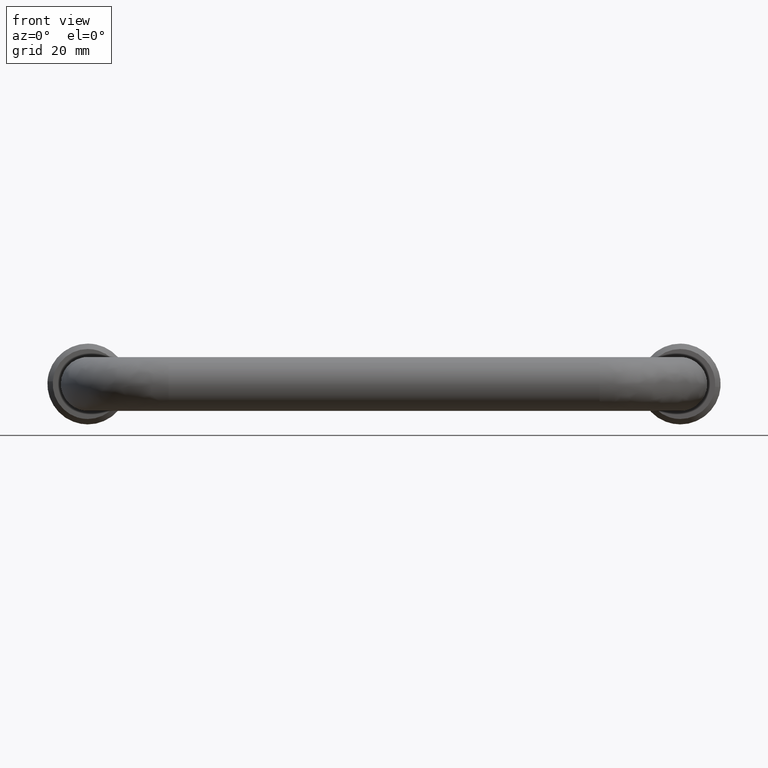
[diagram: clean part render]
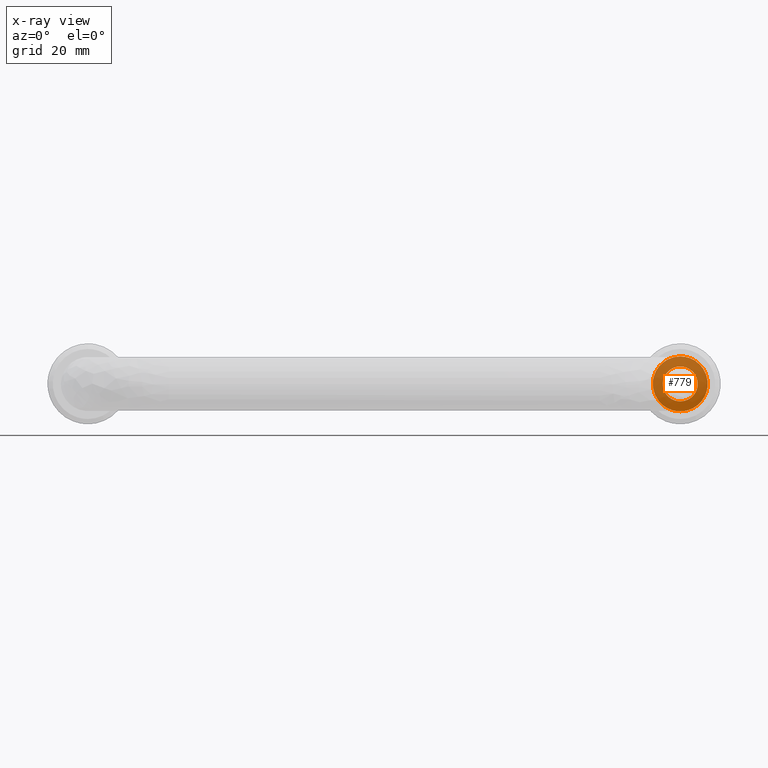
[diagram: x-ray — body ghosted, one internal face saturated and labeled with its STEP entity id]
A machine part, front view, then the same camera in x-ray: the body is ghosted and one INTERNAL B-rep face — a face not visible from any outside direction — is saturated and labeled: STEP entity #779.
In plain terms, the highlighted face is a freeform B-spline surface patch.
Its self-contained STEP definition (entity closure, byte-faithful):
#428=CARTESIAN_POINT('',(-5.090487471931729,6.938894E-017,0.311347551951359));
#429=VERTEX_POINT('',#428);
#435=CARTESIAN_POINT('',(4.898425E-016,0.0,5.100000000000001));
#436=VERTEX_POINT('',#435);
#437=CARTESIAN_POINT('',(4.898425E-016,0.0,5.100000000000001));
#438=CARTESIAN_POINT('',(-4.797600940607954,0.0,5.100000000000000));
#439=CARTESIAN_POINT('',(-5.090487471931729,6.938894E-017,0.311347551951359));
#447=(BOUNDED_CURVE()B_SPLINE_CURVE(2,(#437,#438,#439),.UNSPECIFIED.,.F.,.U.)B_SPLINE_CURVE_WITH_KNOTS((3,3),(0.500000000000000,0.739332962220031),.UNSPECIFIED.)CURVE()GEOMETRIC_REPRESENTATION_ITEM()RATIONAL_B_SPLINE_CURVE((1.0,0.719603993308866,0.976072041626187))REPRESENTATION_ITEM(''));
#448=EDGE_CURVE('',#436,#429,#447,.T.);
#450=CARTESIAN_POINT('',(5.064348584428646,7.098571E-017,-0.601974596968662));
#451=VERTEX_POINT('',#450);
#452=CARTESIAN_POINT('',(5.064348584428647,7.098571E-017,-0.601974596968662));
#453=CARTESIAN_POINT('',(5.100000000000002,0.0,-0.302043010446253));
#454=CARTESIAN_POINT('',(5.100000000000001,0.0,0.0));
#455=CARTESIAN_POINT('',(5.100000000000002,0.0,5.100000000000001));
#456=CARTESIAN_POINT('',(4.898425E-016,0.0,5.100000000000001));
#464=(BOUNDED_CURVE()B_SPLINE_CURVE(2,(#452,#453,#454,#455,#456),.UNSPECIFIED.,.F.,.U.)B_SPLINE_CURVE_WITH_KNOTS((3,2,3),(0.229562473501015,0.250000000000000,0.500000000000000),.UNSPECIFIED.)CURVE()GEOMETRIC_REPRESENTATION_ITEM()RATIONAL_B_SPLINE_CURVE((0.956026754159211,0.976055948316508,1.0,0.707106781186548,1.0))REPRESENTATION_ITEM(''));
#465=EDGE_CURVE('',#451,#436,#464,.T.);
#509=CARTESIAN_POINT('',(4.898425E-016,0.0,-5.100000000000001));
#510=VERTEX_POINT('',#509);
#511=CARTESIAN_POINT('',(4.898425E-016,0.0,-5.100000000000001));
#512=CARTESIAN_POINT('',(4.529690081957111,0.0,-5.100000000000001));
#513=CARTESIAN_POINT('',(5.064348584428646,7.098571E-017,-0.601974596968662));
#521=(BOUNDED_CURVE()B_SPLINE_CURVE(2,(#511,#512,#513),.UNSPECIFIED.,.F.,.U.)B_SPLINE_CURVE_WITH_KNOTS((3,3),(0.0,0.229562473501015),.UNSPECIFIED.)CURVE()GEOMETRIC_REPRESENTATION_ITEM()RATIONAL_B_SPLINE_CURVE((1.0,0.731050832870040,0.956026754159211))REPRESENTATION_ITEM(''));
#522=EDGE_CURVE('',#510,#451,#521,.T.);
#524=CARTESIAN_POINT('',(-5.090487471931729,6.938894E-017,0.311347551951359));
#525=CARTESIAN_POINT('',(-5.100000000000000,0.0,0.155819093147299));
#526=CARTESIAN_POINT('',(-5.100000000000000,0.0,0.0));
#527=CARTESIAN_POINT('',(-5.099999999999999,0.0,-5.100000000000001));
#528=CARTESIAN_POINT('',(4.898425E-016,0.0,-5.100000000000001));
#536=(BOUNDED_CURVE()B_SPLINE_CURVE(2,(#524,#525,#526,#527,#528),.UNSPECIFIED.,.F.,.U.)B_SPLINE_CURVE_WITH_KNOTS((3,2,3),(0.739332962220032,0.750000000000000,1.0),.UNSPECIFIED.)CURVE()GEOMETRIC_REPRESENTATION_ITEM()RATIONAL_B_SPLINE_CURVE((0.976072041626187,0.987502787877681,1.0,0.707106781186548,1.0))REPRESENTATION_ITEM(''));
#537=EDGE_CURVE('',#429,#510,#536,.T.);
#580=CARTESIAN_POINT('',(3.227280960643510,-2.129571E-017,-0.383611262957571));
#581=VERTEX_POINT('',#580);
#582=CARTESIAN_POINT('',(4.898425E-016,0.0,3.250000000000000));
#583=VERTEX_POINT('',#582);
#584=CARTESIAN_POINT('',(3.227280960643510,-2.129571E-017,-0.383611262957571));
#585=CARTESIAN_POINT('',(3.250000000000000,0.0,-0.192478389195230));
#586=CARTESIAN_POINT('',(3.250000000000000,0.0,0.0));
#587=CARTESIAN_POINT('',(3.250000000000000,0.0,3.250000000000000));
#588=CARTESIAN_POINT('',(4.898425E-016,0.0,3.250000000000000));
#596=(BOUNDED_CURVE()B_SPLINE_CURVE(2,(#584,#585,#586,#587,#588),.UNSPECIFIED.,.F.,.U.)B_SPLINE_CURVE_WITH_KNOTS((3,2,3),(0.229562473481804,0.250000000000000,0.500000000000000),.UNSPECIFIED.)CURVE()GEOMETRIC_REPRESENTATION_ITEM()RATIONAL_B_SPLINE_CURVE((0.956026754121557,0.976055948294001,1.0,0.707106781186547,1.0))REPRESENTATION_ITEM(''));
#597=EDGE_CURVE('',#581,#583,#596,.T.);
#599=CARTESIAN_POINT('',(-3.243938094856484,-2.428613E-017,0.198407753726705));
#600=VERTEX_POINT('',#599);
#601=CARTESIAN_POINT('',(4.898425E-016,0.0,3.250000000000000));
#602=CARTESIAN_POINT('',(-3.057294716993268,0.0,3.250000000000000));
#603=CARTESIAN_POINT('',(-3.243938094856484,-2.428613E-017,0.198407753726705));
#611=(BOUNDED_CURVE()B_SPLINE_CURVE(2,(#601,#602,#603),.UNSPECIFIED.,.F.,.U.)B_SPLINE_CURVE_WITH_KNOTS((3,3),(0.500000000000000,0.739332962216605),.UNSPECIFIED.)CURVE()GEOMETRIC_REPRESENTATION_ITEM()RATIONAL_B_SPLINE_CURVE((1.0,0.719603993312880,0.976072041618844))REPRESENTATION_ITEM(''));
#612=EDGE_CURVE('',#583,#600,#611,.T.);
#679=CARTESIAN_POINT('',(4.898425E-016,0.0,-3.250000000000000));
#680=VERTEX_POINT('',#679);
#681=CARTESIAN_POINT('',(4.898425E-016,0.0,-3.250000000000000));
#682=CARTESIAN_POINT('',(2.886567208759887,0.0,-3.250000000000000));
#683=CARTESIAN_POINT('',(3.227280960643510,-2.129571E-017,-0.383611262957571));
#691=(BOUNDED_CURVE()B_SPLINE_CURVE(2,(#681,#682,#683),.UNSPECIFIED.,.F.,.U.)B_SPLINE_CURVE_WITH_KNOTS((3,3),(0.0,0.229562473481804),.UNSPECIFIED.)CURVE()GEOMETRIC_REPRESENTATION_ITEM()RATIONAL_B_SPLINE_CURVE((1.0,0.731050832892546,0.956026754121557))REPRESENTATION_ITEM(''));
#692=EDGE_CURVE('',#680,#581,#691,.T.);
#726=CARTESIAN_POINT('',(-3.243938094856485,-2.428613E-017,0.198407753726705));
#727=CARTESIAN_POINT('',(-3.250000000000000,0.0,0.099296480959502));
#728=CARTESIAN_POINT('',(-3.250000000000000,0.0,0.0));
#729=CARTESIAN_POINT('',(-3.250000000000000,0.0,-3.250000000000000));
#730=CARTESIAN_POINT('',(4.898425E-016,0.0,-3.250000000000000));
#738=(BOUNDED_CURVE()B_SPLINE_CURVE(2,(#726,#727,#728,#729,#730),.UNSPECIFIED.,.F.,.U.)B_SPLINE_CURVE_WITH_KNOTS((3,2,3),(0.739332962216605,0.750000000000000,1.0),.UNSPECIFIED.)CURVE()GEOMETRIC_REPRESENTATION_ITEM()RATIONAL_B_SPLINE_CURVE((0.976072041618843,0.987502787873667,1.0,0.707106781186547,1.0))REPRESENTATION_ITEM(''));
#739=EDGE_CURVE('',#600,#680,#738,.T.);
#762=CARTESIAN_POINT('',(-5.609366138014241,0.0,5.609489884480118));
#763=CARTESIAN_POINT('',(-5.609366138014241,0.0,-5.609490249260544));
#764=CARTESIAN_POINT('',(5.609397235545563,0.0,5.609489884480118));
#765=CARTESIAN_POINT('',(5.609397235545563,0.0,-5.609490249260544));
#766=B_SPLINE_SURFACE_WITH_KNOTS('',1,1,((#762,#764),(#763,#765)),.UNSPECIFIED.,.F.,.F.,.U.,(2,2),(2,2),(0.0,11.218980133740660),(0.0,11.218763373559799),.UNSPECIFIED.);
#767=ORIENTED_EDGE('',*,*,#522,.T.);
#768=ORIENTED_EDGE('',*,*,#465,.T.);
#769=ORIENTED_EDGE('',*,*,#448,.T.);
#770=ORIENTED_EDGE('',*,*,#537,.T.);
#771=EDGE_LOOP('',(#767,#768,#769,#770));
#772=FACE_OUTER_BOUND('',#771,.T.);
#773=ORIENTED_EDGE('',*,*,#612,.F.);
#774=ORIENTED_EDGE('',*,*,#597,.F.);
#775=ORIENTED_EDGE('',*,*,#692,.F.);
#776=ORIENTED_EDGE('',*,*,#739,.F.);
#777=EDGE_LOOP('',(#773,#774,#775,#776));
#778=FACE_BOUND('',#777,.T.);
#779=ADVANCED_FACE('',(#772,#778),#766,.T.);